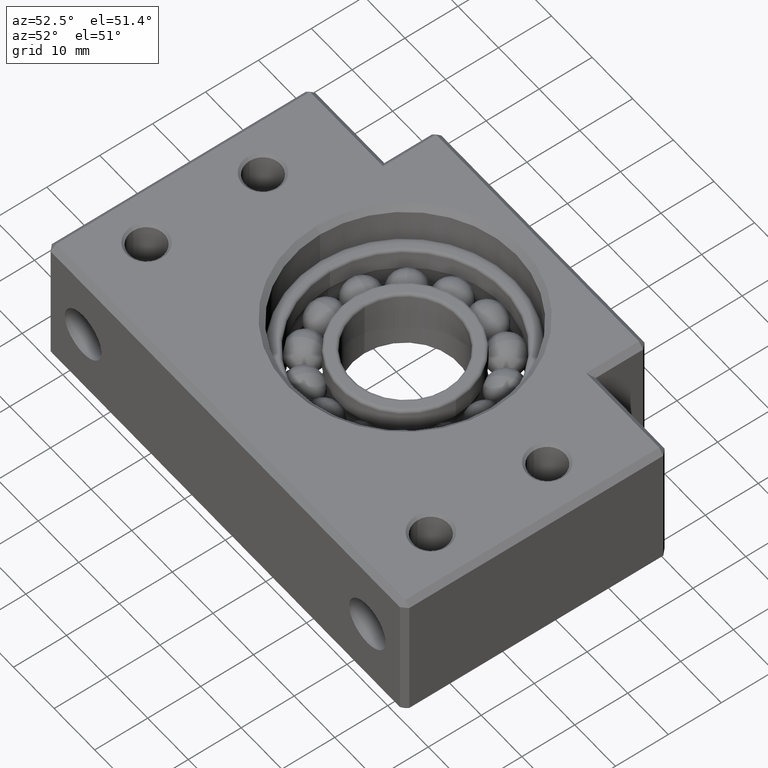
[diagram: clean part render]
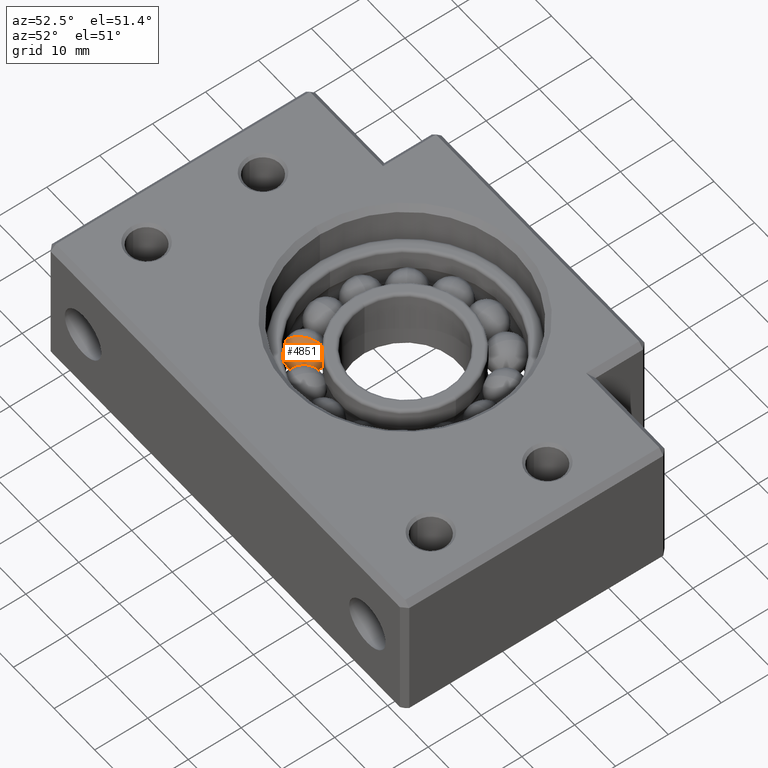
[diagram: same view with one face highlighted and labeled with its STEP entity id]
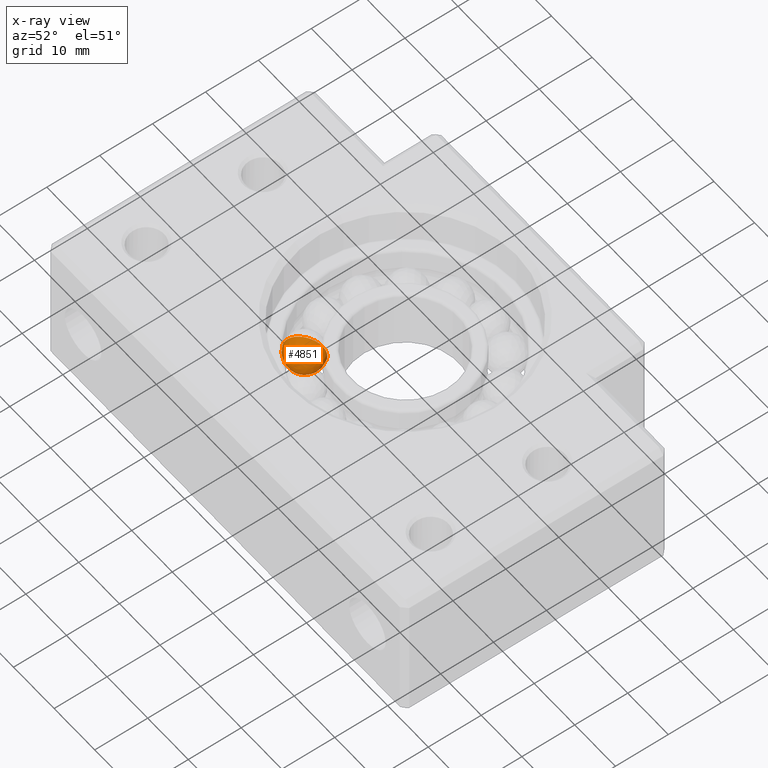
[diagram: x-ray of the same camera — body ghosted, the highlighted face saturated]
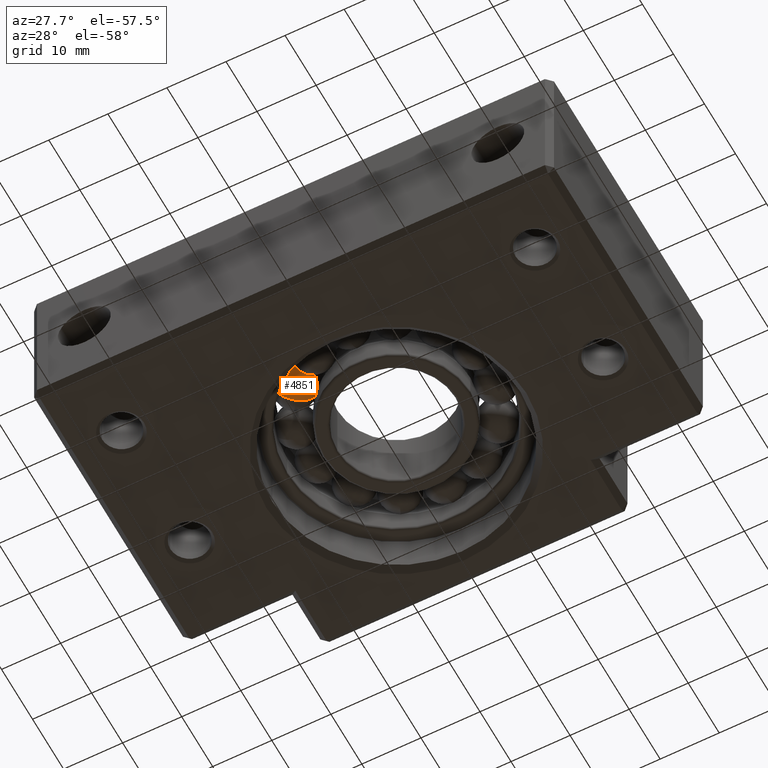
[diagram: same view with one face highlighted and labeled with its STEP entity id]
A machine part, auxiliary view. The second image highlights one B-rep face of the part: STEP entity #4851.
The next image is the same camera in x-ray: the body ghosted, the highlighted face saturated — about 0% of this face is hidden behind the body in this view.
A second angle (auxiliary view) of the same face is appended — the face is thin or edge-on in the first view.
In plain terms, the highlighted spherical surface has radius 3.5 mm.
Its self-contained STEP definition (entity closure, byte-faithful):
#214 = DIRECTION ( 'NONE',  ( 0.7818314824680268100, 0.6234898018587372600, 0.0000000000000000000 ) ) ;
#215 = DIRECTION ( 'NONE',  ( 0.6234898018587371500, -0.7818314824680269200, 0.0000000000000000000 ) ) ;
#216 = CARTESIAN_POINT ( 'NONE',  ( -12.11838797825440200, 24.33590807118957500, -1.734723475976807100E-015 ) ) ;
#217 = AXIS2_PLACEMENT_3D ( 'NONE', #216, #215, #214 ) ;
#223 = CIRCLE ( 'NONE', #217, 3.499999999999999100 ) ;
#1039 = CARTESIAN_POINT ( 'NONE',  ( -12.11838797825440200, 24.33590807118957500, -1.734723475976807100E-015 ) ) ;
#1040 = AXIS2_PLACEMENT_3D ( 'NONE', #1039, #1557, #2971 ) ;
#1044 = SPHERICAL_SURFACE ( 'NONE', #1040, 3.499999999999999100 ) ;
#1214 = CARTESIAN_POINT ( 'NONE',  ( -12.11838797825440200, 24.33590807118957500, 3.499999999999997300 ) ) ;
#1557 = DIRECTION ( 'NONE',  ( 0.6234898018587372600, -0.7818314824680268100, 0.0000000000000000000 ) ) ;
#1703 = ORIENTED_EDGE ( 'NONE', *, *, #1704, .T. ) ;
#1704 = EDGE_CURVE ( 'NONE', #4854, #3844, #223, .T. ) ;
#2971 = DIRECTION ( 'NONE',  ( -0.7818314824680269200, -0.6234898018587373700, 0.0000000000000000000 ) ) ;
#2972 = FACE_OUTER_BOUND ( 'NONE', #4849, .T. ) ;
#3222 = DIRECTION ( 'NONE',  ( -0.7818314824680268100, -0.6234898018587372600, 0.0000000000000000000 ) ) ;
#3223 = DIRECTION ( 'NONE',  ( -0.6234898018587372600, 0.7818314824680268100, 0.0000000000000000000 ) ) ;
#3224 = CARTESIAN_POINT ( 'NONE',  ( -12.11838797825440200, 24.33590807118957500, -1.734723475976807100E-015 ) ) ;
#3225 = AXIS2_PLACEMENT_3D ( 'NONE', #3224, #3223, #3222 ) ;
#3226 = CIRCLE ( 'NONE', #3225, 3.499999999999999100 ) ;
#3279 = CARTESIAN_POINT ( 'NONE',  ( -12.11838797825440200, 24.33590807118957500, -3.500000000000000900 ) ) ;
#3844 = VERTEX_POINT ( 'NONE', #1214 ) ;
#4847 = EDGE_CURVE ( 'NONE', #4854, #3844, #3226, .T. ) ;
#4849 = EDGE_LOOP ( 'NONE', ( #4855, #1703 ) ) ;
#4851 = ADVANCED_FACE ( 'NONE', ( #2972 ), #1044, .T. ) ;
#4854 = VERTEX_POINT ( 'NONE', #3279 ) ;
#4855 = ORIENTED_EDGE ( 'NONE', *, *, #4847, .F. ) ;